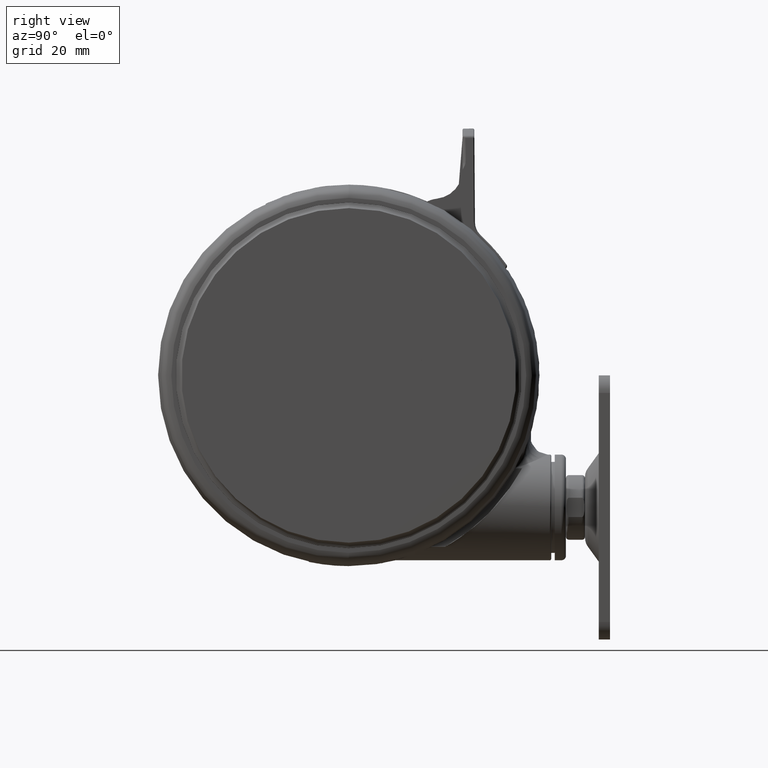
[diagram: clean part render]
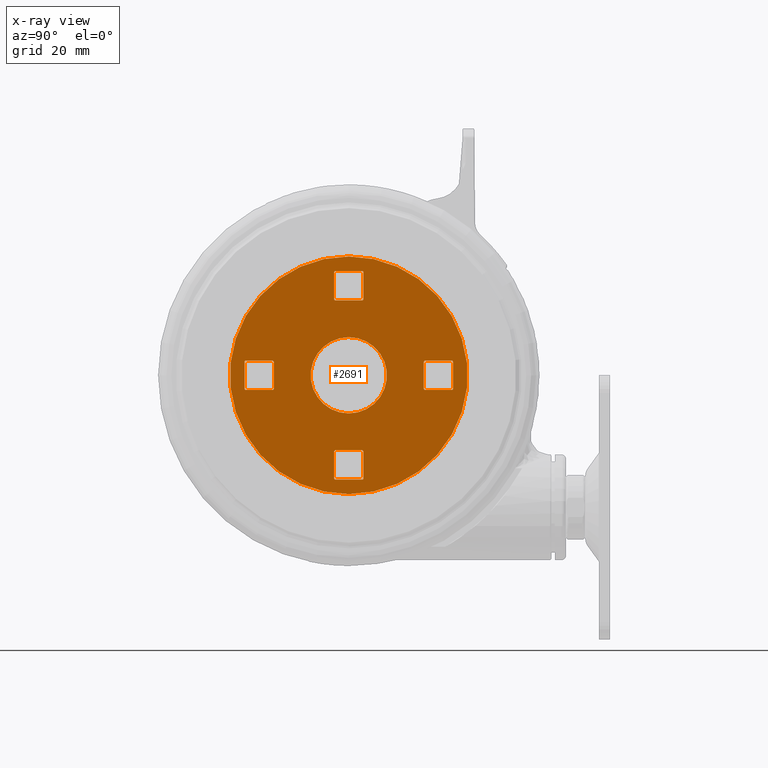
[diagram: x-ray — body ghosted, one internal face saturated and labeled with its STEP entity id]
A machine part, right view, then the same camera in x-ray: the body is ghosted and one INTERNAL B-rep face — a face not visible from any outside direction — is saturated and labeled: STEP entity #2691.
In plain terms, the highlighted planar face has unit normal (-1, 0, 0).
Its self-contained STEP definition (entity closure, byte-faithful):
#682 = AXIS2_PLACEMENT_3D ( 'NONE', #65509, #27276, #71905 ) ;
#771 = CARTESIAN_POINT ( 'NONE',  ( 35.05000000000002600, 5.000000000000342800, -3.800000000000094900 ) ) ;
#797 = DIRECTION ( 'NONE',  ( -1.000000000000000000, 0.0000000000000000000, 0.0000000000000000000 ) ) ;
#1112 = VECTOR ( 'NONE', #45716, 1000.000000000000000 ) ;
#1264 = CARTESIAN_POINT ( 'NONE',  ( 4.500000000000027500, -35.55000000000002600, -3.800000000000094900 ) ) ;
#1865 = VERTEX_POINT ( 'NONE', #79217 ) ;
#1954 = ORIENTED_EDGE ( 'NONE', *, *, #2468, .T. ) ;
#2390 = CARTESIAN_POINT ( 'NONE',  ( -25.54999999999997200, 4.499999999999877400, -3.800000000000094900 ) ) ;
#2468 = EDGE_CURVE ( 'NONE', #56537, #27357, #70090, .T. ) ;
#2691 = ADVANCED_FACE ( 'NONE', ( #9198, #58048, #74948, #41154, #24132, #7186 ), #57927, .F. ) ;
#2896 = AXIS2_PLACEMENT_3D ( 'NONE', #68899, #30649, #75239 ) ;
#3296 = VERTEX_POINT ( 'NONE', #52837 ) ;
#3450 = CARTESIAN_POINT ( 'NONE',  ( 25.55000000000002900, 4.500000000000241600, -3.800000000000094900 ) ) ;
#3480 = CIRCLE ( 'NONE', #18502, 40.50000000000000000 ) ;
#4076 = CARTESIAN_POINT ( 'NONE',  ( 26.05000000000002900, -4.499999999999752200, -3.800000000000094900 ) ) ;
#4117 = CARTESIAN_POINT ( 'NONE',  ( -26.04999999999997200, -5.000000000000127900, -3.800000000000094900 ) ) ;
#4129 = EDGE_LOOP ( 'NONE', ( #43655, #62179, #52966, #71344, #48735, #46915, #55117, #80193 ) ) ;
#4209 = DIRECTION ( 'NONE',  ( 0.0000000000000000000, 0.0000000000000000000, -1.000000000000000000 ) ) ;
#4718 = DIRECTION ( 'NONE',  ( -1.000000000000000000, 0.0000000000000000000, 0.0000000000000000000 ) ) ;
#5184 = LINE ( 'NONE', #33694, #69034 ) ;
#5614 = VERTEX_POINT ( 'NONE', #19569 ) ;
#6044 = CARTESIAN_POINT ( 'NONE',  ( 25.55000000000002900, -4.499999999999757500, -3.800000000000094900 ) ) ;
#6046 = CARTESIAN_POINT ( 'NONE',  ( -4.999999999999972500, 35.04999999999996900, -3.800000000000094900 ) ) ;
#6412 = AXIS2_PLACEMENT_3D ( 'NONE', #64480, #26285, #70910 ) ;
#6967 = EDGE_CURVE ( 'NONE', #56537, #57598, #44350, .T. ) ;
#7186 = FACE_BOUND ( 'NONE', #36274, .T. ) ;
#7812 = EDGE_LOOP ( 'NONE', ( #12315, #48839 ) ) ;
#8909 = VERTEX_POINT ( 'NONE', #62669 ) ;
#9198 = FACE_OUTER_BOUND ( 'NONE', #7812, .T. ) ;
#9398 = LINE ( 'NONE', #13366, #28294 ) ;
#9605 = CARTESIAN_POINT ( 'NONE',  ( 25.55000000000002900, -4.999999999999758400, -3.800000000000094900 ) ) ;
#9864 = EDGE_CURVE ( 'NONE', #36148, #58691, #13938, .T. ) ;
#10050 = EDGE_CURVE ( 'NONE', #52017, #3296, #80692, .T. ) ;
#10493 = DIRECTION ( 'NONE',  ( -1.000000000000000000, 0.0000000000000000000, 0.0000000000000000000 ) ) ;
#10608 = CARTESIAN_POINT ( 'NONE',  ( 35.05000000000002600, -4.999999999999657200, -3.800000000000094900 ) ) ;
#11124 = CIRCLE ( 'NONE', #13124, 0.5000000000000004400 ) ;
#11198 = ORIENTED_EDGE ( 'NONE', *, *, #48404, .T. ) ;
#11722 = CARTESIAN_POINT ( 'NONE',  ( 35.55000000000002600, -4.499999999999652700, -3.800000000000094900 ) ) ;
#12315 = ORIENTED_EDGE ( 'NONE', *, *, #73971, .T. ) ;
#12373 = CARTESIAN_POINT ( 'NONE',  ( 35.55000000000002600, 5.000000000000352600, -3.800000000000094900 ) ) ;
#12621 = EDGE_CURVE ( 'NONE', #62652, #27357, #24934, .T. ) ;
#12749 = DIRECTION ( 'NONE',  ( 0.0000000000000000000, 0.0000000000000000000, -1.000000000000000000 ) ) ;
#12928 = EDGE_CURVE ( 'NONE', #19203, #58263, #66788, .T. ) ;
#13066 = CARTESIAN_POINT ( 'NONE',  ( -4.999999999999972500, -35.05000000000002600, -3.800000000000094900 ) ) ;
#13124 = AXIS2_PLACEMENT_3D ( 'NONE', #51725, #13506, #58096 ) ;
#13214 = VERTEX_POINT ( 'NONE', #55687 ) ;
#13366 = CARTESIAN_POINT ( 'NONE',  ( -35.54999999999996900, 4.999999999999852600, -3.800000000000094900 ) ) ;
#13370 = DIRECTION ( 'NONE',  ( 0.0000000000000000000, 0.0000000000000000000, -1.000000000000000000 ) ) ;
#13506 = DIRECTION ( 'NONE',  ( 0.0000000000000000000, 0.0000000000000000000, -1.000000000000000000 ) ) ;
#13670 = ORIENTED_EDGE ( 'NONE', *, *, #42376, .T. ) ;
#13938 = LINE ( 'NONE', #20988, #77717 ) ;
#13969 = EDGE_CURVE ( 'NONE', #20529, #15328, #49689, .T. ) ;
#14466 = DIRECTION ( 'NONE',  ( 0.0000000000000000000, 0.0000000000000000000, -1.000000000000000000 ) ) ;
#15099 = ORIENTED_EDGE ( 'NONE', *, *, #10050, .T. ) ;
#15183 = LINE ( 'NONE', #81973, #17171 ) ;
#15328 = VERTEX_POINT ( 'NONE', #2390 ) ;
#15536 = AXIS2_PLACEMENT_3D ( 'NONE', #4076, #48720, #10493 ) ;
#15553 = CARTESIAN_POINT ( 'NONE',  ( 4.500000000000027500, -35.05000000000002600, -3.800000000000094900 ) ) ;
#15875 = VERTEX_POINT ( 'NONE', #34011 ) ;
#15907 = CARTESIAN_POINT ( 'NONE',  ( -4.999999999999972500, 25.54999999999997200, -3.800000000000094900 ) ) ;
#16452 = CIRCLE ( 'NONE', #29212, 0.5000000000000004400 ) ;
#16774 = CARTESIAN_POINT ( 'NONE',  ( -12.99999999999997200, -2.775557561562891400E-014, -3.800000000000094900 ) ) ;
#16938 = ORIENTED_EDGE ( 'NONE', *, *, #78203, .T. ) ;
#17171 = VECTOR ( 'NONE', #30963, 1000.000000000000000 ) ;
#17865 = LINE ( 'NONE', #81150, #79676 ) ;
#18010 = EDGE_CURVE ( 'NONE', #49959, #34839, #52005, .T. ) ;
#18502 = AXIS2_PLACEMENT_3D ( 'NONE', #60030, #21828, #66434 ) ;
#18613 = ORIENTED_EDGE ( 'NONE', *, *, #62146, .T. ) ;
#18683 = CARTESIAN_POINT ( 'NONE',  ( -4.499999999999971600, 25.54999999999997200, -3.800000000000094900 ) ) ;
#18693 = AXIS2_PLACEMENT_3D ( 'NONE', #26964, #71584, #33397 ) ;
#19203 = VERTEX_POINT ( 'NONE', #36545 ) ;
#19304 = ORIENTED_EDGE ( 'NONE', *, *, #27400, .T. ) ;
#19443 = AXIS2_PLACEMENT_3D ( 'NONE', #25832, #70482, #32228 ) ;
#19569 = CARTESIAN_POINT ( 'NONE',  ( 35.55000000000002600, 4.500000000000351700, -3.800000000000094900 ) ) ;
#19639 = ORIENTED_EDGE ( 'NONE', *, *, #59115, .T. ) ;
#19677 = AXIS2_PLACEMENT_3D ( 'NONE', #42449, #4209, #48861 ) ;
#19732 = CARTESIAN_POINT ( 'NONE',  ( 2.775557561562891400E-014, 53.99999999999997200, -3.800000000000094900 ) ) ;
#19821 = ORIENTED_EDGE ( 'NONE', *, *, #12928, .T. ) ;
#20301 = CARTESIAN_POINT ( 'NONE',  ( 4.500000000000027500, 35.04999999999996900, -3.800000000000094900 ) ) ;
#20529 = VERTEX_POINT ( 'NONE', #59203 ) ;
#20988 = CARTESIAN_POINT ( 'NONE',  ( 25.55000000000002900, 5.000000000000242500, -3.800000000000094900 ) ) ;
#21265 = ORIENTED_EDGE ( 'NONE', *, *, #46890, .F. ) ;
#21828 = DIRECTION ( 'NONE',  ( -0.0000000000000000000, -0.0000000000000000000, 1.000000000000000000 ) ) ;
#21973 = DIRECTION ( 'NONE',  ( -1.000000000000000000, 0.0000000000000000000, 0.0000000000000000000 ) ) ;
#22867 = CARTESIAN_POINT ( 'NONE',  ( 26.05000000000002900, -4.999999999999758400, -3.800000000000094900 ) ) ;
#22974 = ORIENTED_EDGE ( 'NONE', *, *, #74339, .F. ) ;
#23062 = CIRCLE ( 'NONE', #6412, 0.4999999999999995600 ) ;
#23316 = DIRECTION ( 'NONE',  ( -8.673617379884039200E-017, 1.000000000000000000, 0.0000000000000000000 ) ) ;
#23479 = VECTOR ( 'NONE', #72829, 1000.000000000000000 ) ;
#23792 = DIRECTION ( 'NONE',  ( -1.000000000000000000, 0.0000000000000000000, 0.0000000000000000000 ) ) ;
#23962 = ORIENTED_EDGE ( 'NONE', *, *, #37371, .T. ) ;
#24003 = EDGE_CURVE ( 'NONE', #39049, #43674, #11124, .T. ) ;
#24052 = DIRECTION ( 'NONE',  ( 1.000000000000000000, 0.0000000000000000000, 0.0000000000000000000 ) ) ;
#24132 = FACE_BOUND ( 'NONE', #54297, .T. ) ;
#24419 = ORIENTED_EDGE ( 'NONE', *, *, #33403, .F. ) ;
#24934 = LINE ( 'NONE', #79447, #56835 ) ;
#25039 = DIRECTION ( 'NONE',  ( 0.0000000000000000000, 0.0000000000000000000, -1.000000000000000000 ) ) ;
#25064 = VERTEX_POINT ( 'NONE', #71567 ) ;
#25310 = ORIENTED_EDGE ( 'NONE', *, *, #60809, .F. ) ;
#25367 = ORIENTED_EDGE ( 'NONE', *, *, #36391, .F. ) ;
#25694 = AXIS2_PLACEMENT_3D ( 'NONE', #52689, #14466, #59081 ) ;
#25802 = EDGE_CURVE ( 'NONE', #71623, #43674, #82109, .T. ) ;
#25832 = CARTESIAN_POINT ( 'NONE',  ( 2.775557561562891400E-014, -2.775557561562891400E-014, -3.800000000000094900 ) ) ;
#26285 = DIRECTION ( 'NONE',  ( 0.0000000000000000000, 0.0000000000000000000, -1.000000000000000000 ) ) ;
#26703 = DIRECTION ( 'NONE',  ( -1.000000000000000000, 0.0000000000000000000, 0.0000000000000000000 ) ) ;
#26733 = DIRECTION ( 'NONE',  ( 0.0000000000000000000, 1.000000000000000000, 0.0000000000000000000 ) ) ;
#26964 = CARTESIAN_POINT ( 'NONE',  ( -4.499999999999971600, 35.04999999999996900, -3.800000000000094900 ) ) ;
#27276 = DIRECTION ( 'NONE',  ( 0.0000000000000000000, 0.0000000000000000000, -1.000000000000000000 ) ) ;
#27357 = VERTEX_POINT ( 'NONE', #44454 ) ;
#27400 = EDGE_CURVE ( 'NONE', #42291, #57598, #23062, .T. ) ;
#27584 = CARTESIAN_POINT ( 'NONE',  ( 13.00000000000002700, -2.616353477673735300E-014, -3.800000000000094900 ) ) ;
#28294 = VECTOR ( 'NONE', #64377, 1000.000000000000000 ) ;
#28687 = DIRECTION ( 'NONE',  ( 1.000000000000000000, 0.0000000000000000000, 0.0000000000000000000 ) ) ;
#28901 = AXIS2_PLACEMENT_3D ( 'NONE', #15553, #60180, #21973 ) ;
#29212 = AXIS2_PLACEMENT_3D ( 'NONE', #74615, #36470, #81021 ) ;
#29343 = VECTOR ( 'NONE', #28687, 1000.000000000000000 ) ;
#29778 = VECTOR ( 'NONE', #69823, 1000.000000000000000 ) ;
#29843 = CARTESIAN_POINT ( 'NONE',  ( 5.000000000000027500, -26.05000000000002900, -3.800000000000094900 ) ) ;
#29922 = DIRECTION ( 'NONE',  ( -0.0000000000000000000, -0.0000000000000000000, 1.000000000000000000 ) ) ;
#30283 = CARTESIAN_POINT ( 'NONE',  ( -4.999999999999972500, -26.05000000000002900, -3.800000000000094900 ) ) ;
#30649 = DIRECTION ( 'NONE',  ( 0.0000000000000000000, 0.0000000000000000000, -1.000000000000000000 ) ) ;
#30895 = CIRCLE ( 'NONE', #75761, 0.4999999999999995600 ) ;
#30963 = DIRECTION ( 'NONE',  ( 0.0000000000000000000, -1.000000000000000000, 0.0000000000000000000 ) ) ;
#31274 = ORIENTED_EDGE ( 'NONE', *, *, #71120, .T. ) ;
#32059 = CIRCLE ( 'NONE', #2896, 0.5000000000000004400 ) ;
#32228 = DIRECTION ( 'NONE',  ( -1.000000000000000000, 0.0000000000000000000, 0.0000000000000000000 ) ) ;
#32667 = CIRCLE ( 'NONE', #28901, 0.4999999999999995600 ) ;
#33109 = AXIS2_PLACEMENT_3D ( 'NONE', #51605, #13370, #57972 ) ;
#33397 = DIRECTION ( 'NONE',  ( -1.000000000000000000, 0.0000000000000000000, 0.0000000000000000000 ) ) ;
#33403 = EDGE_CURVE ( 'NONE', #19203, #44228, #17865, .T. ) ;
#33694 = CARTESIAN_POINT ( 'NONE',  ( 35.55000000000002600, -4.999999999999657200, -3.800000000000094900 ) ) ;
#34011 = CARTESIAN_POINT ( 'NONE',  ( -40.49999999999997200, -2.775557561562891400E-014, -3.800000000000094900 ) ) ;
#34103 = ORIENTED_EDGE ( 'NONE', *, *, #66981, .F. ) ;
#34682 = VERTEX_POINT ( 'NONE', #16774 ) ;
#34774 = VECTOR ( 'NONE', #23792, 1000.000000000000000 ) ;
#34839 = VERTEX_POINT ( 'NONE', #56325 ) ;
#35755 = DIRECTION ( 'NONE',  ( 0.0000000000000000000, 0.0000000000000000000, -1.000000000000000000 ) ) ;
#35762 = CARTESIAN_POINT ( 'NONE',  ( -35.04999999999996900, -4.500000000000157200, -3.800000000000094900 ) ) ;
#35961 = CIRCLE ( 'NONE', #15536, 0.5000000000000004400 ) ;
#36148 = VERTEX_POINT ( 'NONE', #3450 ) ;
#36224 = CARTESIAN_POINT ( 'NONE',  ( 5.000000000000027500, 26.04999999999997200, -3.800000000000094900 ) ) ;
#36274 = EDGE_LOOP ( 'NONE', ( #23962, #11198 ) ) ;
#36391 = EDGE_CURVE ( 'NONE', #1865, #72064, #57411, .T. ) ;
#36470 = DIRECTION ( 'NONE',  ( 0.0000000000000000000, 0.0000000000000000000, -1.000000000000000000 ) ) ;
#36511 = DIRECTION ( 'NONE',  ( -1.000000000000000000, -3.491481338843135300E-015, 0.0000000000000000000 ) ) ;
#36545 = CARTESIAN_POINT ( 'NONE',  ( -4.499999999999971600, -35.55000000000002600, -3.800000000000094900 ) ) ;
#37371 = EDGE_CURVE ( 'NONE', #34682, #72895, #42350, .T. ) ;
#37398 = VERTEX_POINT ( 'NONE', #771 ) ;
#37401 = ORIENTED_EDGE ( 'NONE', *, *, #43802, .T. ) ;
#37736 = EDGE_CURVE ( 'NONE', #49111, #15875, #82085, .T. ) ;
#38660 = EDGE_CURVE ( 'NONE', #39049, #5614, #5184, .T. ) ;
#38991 = DIRECTION ( 'NONE',  ( 0.0000000000000000000, 0.0000000000000000000, -1.000000000000000000 ) ) ;
#39049 = VERTEX_POINT ( 'NONE', #11722 ) ;
#39215 = AXIS2_PLACEMENT_3D ( 'NONE', #19732, #38991, #797 ) ;
#39400 = CARTESIAN_POINT ( 'NONE',  ( -35.54999999999996900, 4.499999999999847200, -3.800000000000094900 ) ) ;
#40158 = DIRECTION ( 'NONE',  ( -1.047444401652940200E-014, 1.000000000000000000, 0.0000000000000000000 ) ) ;
#41154 = FACE_BOUND ( 'NONE', #59252, .T. ) ;
#41287 = ORIENTED_EDGE ( 'NONE', *, *, #12621, .F. ) ;
#42144 = AXIS2_PLACEMENT_3D ( 'NONE', #73898, #35755, #80308 ) ;
#42227 = DIRECTION ( 'NONE',  ( -1.000000000000000000, 0.0000000000000000000, 0.0000000000000000000 ) ) ;
#42291 = VERTEX_POINT ( 'NONE', #36224 ) ;
#42350 = CIRCLE ( 'NONE', #19443, 13.00000000000000000 ) ;
#42359 = EDGE_CURVE ( 'NONE', #49959, #71694, #30895, .T. ) ;
#42376 = EDGE_CURVE ( 'NONE', #62652, #34839, #62859, .T. ) ;
#42449 = CARTESIAN_POINT ( 'NONE',  ( 2.775557561562891400E-014, -2.775557561562891400E-014, -3.800000000000094900 ) ) ;
#42945 = DIRECTION ( 'NONE',  ( 0.0000000000000000000, 0.0000000000000000000, -1.000000000000000000 ) ) ;
#43018 = CARTESIAN_POINT ( 'NONE',  ( 40.50000000000002800, -2.276513990910344700E-014, -3.800000000000094900 ) ) ;
#43604 = DIRECTION ( 'NONE',  ( -1.000000000000000000, 0.0000000000000000000, 0.0000000000000000000 ) ) ;
#43655 = ORIENTED_EDGE ( 'NONE', *, *, #51819, .F. ) ;
#43674 = VERTEX_POINT ( 'NONE', #10608 ) ;
#43802 = EDGE_CURVE ( 'NONE', #25064, #44228, #32667, .T. ) ;
#44228 = VERTEX_POINT ( 'NONE', #1264 ) ;
#44350 = LINE ( 'NONE', #15907, #29343 ) ;
#44452 = ORIENTED_EDGE ( 'NONE', *, *, #53384, .F. ) ;
#44454 = CARTESIAN_POINT ( 'NONE',  ( -4.999999999999972500, 26.04999999999997200, -3.800000000000094900 ) ) ;
#45107 = AXIS2_PLACEMENT_3D ( 'NONE', #81047, #42945, #4718 ) ;
#45716 = DIRECTION ( 'NONE',  ( -1.000000000000000000, 0.0000000000000000000, 0.0000000000000000000 ) ) ;
#46840 = LINE ( 'NONE', #12373, #29778 ) ;
#46883 = AXIS2_PLACEMENT_3D ( 'NONE', #35762, #80319, #42227 ) ;
#46890 = EDGE_CURVE ( 'NONE', #20529, #3296, #49518, .T. ) ;
#46915 = ORIENTED_EDGE ( 'NONE', *, *, #50153, .T. ) ;
#47026 = LINE ( 'NONE', #77711, #61924 ) ;
#47210 = EDGE_LOOP ( 'NONE', ( #34103, #37401, #24419, #19821, #72605, #18613, #44452, #16938 ) ) ;
#47854 = CIRCLE ( 'NONE', #56948, 0.4999999999999995600 ) ;
#48318 = VECTOR ( 'NONE', #67016, 1000.000000000000000 ) ;
#48404 = EDGE_CURVE ( 'NONE', #72895, #34682, #73127, .T. ) ;
#48720 = DIRECTION ( 'NONE',  ( 0.0000000000000000000, 0.0000000000000000000, -1.000000000000000000 ) ) ;
#48735 = ORIENTED_EDGE ( 'NONE', *, *, #25802, .F. ) ;
#48839 = ORIENTED_EDGE ( 'NONE', *, *, #37736, .T. ) ;
#48861 = DIRECTION ( 'NONE',  ( -1.000000000000000000, 0.0000000000000000000, 0.0000000000000000000 ) ) ;
#49111 = VERTEX_POINT ( 'NONE', #43018 ) ;
#49312 = AXIS2_PLACEMENT_3D ( 'NONE', #58376, #12749, #43604 ) ;
#49388 = CARTESIAN_POINT ( 'NONE',  ( 4.500000000000027500, -25.55000000000002900, -3.800000000000094900 ) ) ;
#49518 = LINE ( 'NONE', #68312, #79360 ) ;
#49689 = CIRCLE ( 'NONE', #49312, 0.5000000000000004400 ) ;
#49737 = CARTESIAN_POINT ( 'NONE',  ( -25.54999999999997200, -5.000000000000118100, -3.800000000000094900 ) ) ;
#49959 = VERTEX_POINT ( 'NONE', #59025 ) ;
#50153 = EDGE_CURVE ( 'NONE', #71623, #58691, #35961, .T. ) ;
#50221 = CARTESIAN_POINT ( 'NONE',  ( 5.000000000000027500, 35.04999999999996900, -3.800000000000094900 ) ) ;
#51605 = CARTESIAN_POINT ( 'NONE',  ( -4.499999999999971600, -26.05000000000002900, -3.800000000000094900 ) ) ;
#51725 = CARTESIAN_POINT ( 'NONE',  ( 35.05000000000002600, -4.499999999999657200, -3.800000000000094900 ) ) ;
#51763 = LINE ( 'NONE', #61993, #34774 ) ;
#51819 = EDGE_CURVE ( 'NONE', #37398, #80937, #46840, .T. ) ;
#51849 = CARTESIAN_POINT ( 'NONE',  ( 5.000000000000027500, 35.54999999999996900, -3.800000000000094900 ) ) ;
#52005 = LINE ( 'NONE', #51849, #1112 ) ;
#52017 = VERTEX_POINT ( 'NONE', #39400 ) ;
#52689 = CARTESIAN_POINT ( 'NONE',  ( -4.499999999999971600, -35.05000000000002600, -3.800000000000094900 ) ) ;
#52837 = CARTESIAN_POINT ( 'NONE',  ( -35.04999999999996900, 4.999999999999852600, -3.800000000000094900 ) ) ;
#52966 = ORIENTED_EDGE ( 'NONE', *, *, #38660, .F. ) ;
#53346 = ORIENTED_EDGE ( 'NONE', *, *, #76208, .F. ) ;
#53384 = EDGE_CURVE ( 'NONE', #55120, #13214, #51763, .T. ) ;
#53653 = CARTESIAN_POINT ( 'NONE',  ( -35.54999999999996900, -5.000000000000158100, -3.800000000000094900 ) ) ;
#54297 = EDGE_LOOP ( 'NONE', ( #41287, #13670, #74311, #75482, #53346, #19304, #58500, #1954 ) ) ;
#55117 = ORIENTED_EDGE ( 'NONE', *, *, #9864, .F. ) ;
#55120 = VERTEX_POINT ( 'NONE', #49388 ) ;
#55687 = CARTESIAN_POINT ( 'NONE',  ( -4.499999999999971600, -25.55000000000002900, -3.800000000000094900 ) ) ;
#55954 = CIRCLE ( 'NONE', #33109, 0.4999999999999995600 ) ;
#56325 = CARTESIAN_POINT ( 'NONE',  ( -4.499999999999971600, 35.54999999999996900, -3.800000000000094900 ) ) ;
#56537 = VERTEX_POINT ( 'NONE', #18683 ) ;
#56784 = CIRCLE ( 'NONE', #46883, 0.5000000000000004400 ) ;
#56835 = VECTOR ( 'NONE', #60270, 1000.000000000000000 ) ;
#56948 = AXIS2_PLACEMENT_3D ( 'NONE', #63219, #25039, #69664 ) ;
#56968 = VERTEX_POINT ( 'NONE', #67963 ) ;
#57411 = LINE ( 'NONE', #53653, #23479 ) ;
#57598 = VERTEX_POINT ( 'NONE', #75836 ) ;
#57927 = PLANE ( 'NONE',  #39215 ) ;
#57972 = DIRECTION ( 'NONE',  ( -1.000000000000000000, 0.0000000000000000000, 0.0000000000000000000 ) ) ;
#58048 = FACE_BOUND ( 'NONE', #4129, .T. ) ;
#58096 = DIRECTION ( 'NONE',  ( -1.000000000000000000, 0.0000000000000000000, 0.0000000000000000000 ) ) ;
#58263 = VERTEX_POINT ( 'NONE', #13066 ) ;
#58376 = CARTESIAN_POINT ( 'NONE',  ( -26.04999999999997200, 4.499999999999881900, -3.800000000000094900 ) ) ;
#58500 = ORIENTED_EDGE ( 'NONE', *, *, #6967, .F. ) ;
#58691 = VERTEX_POINT ( 'NONE', #6044 ) ;
#59025 = CARTESIAN_POINT ( 'NONE',  ( 4.500000000000027500, 35.54999999999996900, -3.800000000000094900 ) ) ;
#59078 = ORIENTED_EDGE ( 'NONE', *, *, #13969, .T. ) ;
#59081 = DIRECTION ( 'NONE',  ( -1.000000000000000000, 0.0000000000000000000, 0.0000000000000000000 ) ) ;
#59115 = EDGE_CURVE ( 'NONE', #1865, #56968, #56784, .T. ) ;
#59203 = CARTESIAN_POINT ( 'NONE',  ( -26.04999999999997200, 4.999999999999881900, -3.800000000000094900 ) ) ;
#59252 = EDGE_LOOP ( 'NONE', ( #25367, #19639, #22974, #15099, #21265, #59078, #25310, #31274 ) ) ;
#59799 = EDGE_CURVE ( 'NONE', #36148, #80937, #16452, .T. ) ;
#60030 = CARTESIAN_POINT ( 'NONE',  ( 2.775557561562891400E-014, -2.775557561562891400E-014, -3.800000000000094900 ) ) ;
#60180 = DIRECTION ( 'NONE',  ( 0.0000000000000000000, 0.0000000000000000000, -1.000000000000000000 ) ) ;
#60270 = DIRECTION ( 'NONE',  ( 8.673617379884039200E-017, -1.000000000000000000, 0.0000000000000000000 ) ) ;
#60809 = EDGE_CURVE ( 'NONE', #8909, #15328, #80089, .T. ) ;
#61521 = CARTESIAN_POINT ( 'NONE',  ( 5.000000000000027500, -35.55000000000002600, -3.800000000000094900 ) ) ;
#61924 = VECTOR ( 'NONE', #26733, 1000.000000000000000 ) ;
#61993 = CARTESIAN_POINT ( 'NONE',  ( 5.000000000000027500, -25.55000000000002900, -3.800000000000094900 ) ) ;
#62146 = EDGE_CURVE ( 'NONE', #76550, #13214, #55954, .T. ) ;
#62179 = ORIENTED_EDGE ( 'NONE', *, *, #75703, .T. ) ;
#62652 = VERTEX_POINT ( 'NONE', #6046 ) ;
#62669 = CARTESIAN_POINT ( 'NONE',  ( -25.54999999999997200, -4.500000000000117200, -3.800000000000094900 ) ) ;
#62859 = CIRCLE ( 'NONE', #18693, 0.4999999999999995600 ) ;
#63163 = VECTOR ( 'NONE', #68924, 1000.000000000000000 ) ;
#63219 = CARTESIAN_POINT ( 'NONE',  ( 4.500000000000027500, -26.05000000000002900, -3.800000000000094900 ) ) ;
#64377 = DIRECTION ( 'NONE',  ( 3.491481338843135300E-015, -1.000000000000000000, 0.0000000000000000000 ) ) ;
#64480 = CARTESIAN_POINT ( 'NONE',  ( 4.500000000000027500, 26.04999999999997200, -3.800000000000094900 ) ) ;
#64903 = DIRECTION ( 'NONE',  ( 0.0000000000000000000, 0.0000000000000000000, -1.000000000000000000 ) ) ;
#65098 = VECTOR ( 'NONE', #23316, 1000.000000000000000 ) ;
#65509 = CARTESIAN_POINT ( 'NONE',  ( -26.04999999999997200, -4.500000000000127000, -3.800000000000094900 ) ) ;
#66434 = DIRECTION ( 'NONE',  ( -1.000000000000000000, 0.0000000000000000000, 0.0000000000000000000 ) ) ;
#66788 = CIRCLE ( 'NONE', #25694, 0.4999999999999995600 ) ;
#66981 = EDGE_CURVE ( 'NONE', #25064, #70798, #82019, .T. ) ;
#67016 = DIRECTION ( 'NONE',  ( 1.000000000000000000, 1.047444401652940200E-014, 0.0000000000000000000 ) ) ;
#67461 = CIRCLE ( 'NONE', #682, 0.5000000000000004400 ) ;
#67963 = CARTESIAN_POINT ( 'NONE',  ( -35.54999999999996900, -4.500000000000157200, -3.800000000000094900 ) ) ;
#68173 = CARTESIAN_POINT ( 'NONE',  ( 2.775557561562891400E-014, -2.775557561562891400E-014, -3.800000000000094900 ) ) ;
#68312 = CARTESIAN_POINT ( 'NONE',  ( -25.54999999999997200, 4.999999999999881900, -3.800000000000094900 ) ) ;
#68899 = CARTESIAN_POINT ( 'NONE',  ( 35.05000000000002600, 4.500000000000341900, -3.800000000000094900 ) ) ;
#68924 = DIRECTION ( 'NONE',  ( -3.491481338843135300E-015, 1.000000000000000000, 0.0000000000000000000 ) ) ;
#69034 = VECTOR ( 'NONE', #40158, 1000.000000000000000 ) ;
#69664 = DIRECTION ( 'NONE',  ( -1.000000000000000000, 0.0000000000000000000, 0.0000000000000000000 ) ) ;
#69823 = DIRECTION ( 'NONE',  ( -1.000000000000000000, -1.056118019032824000E-014, 0.0000000000000000000 ) ) ;
#70090 = CIRCLE ( 'NONE', #45107, 0.4999999999999995600 ) ;
#70482 = DIRECTION ( 'NONE',  ( 0.0000000000000000000, 0.0000000000000000000, -1.000000000000000000 ) ) ;
#70798 = VERTEX_POINT ( 'NONE', #29843 ) ;
#70910 = DIRECTION ( 'NONE',  ( -1.000000000000000000, 0.0000000000000000000, 0.0000000000000000000 ) ) ;
#71120 = EDGE_CURVE ( 'NONE', #8909, #72064, #67461, .T. ) ;
#71344 = ORIENTED_EDGE ( 'NONE', *, *, #24003, .T. ) ;
#71567 = CARTESIAN_POINT ( 'NONE',  ( 5.000000000000027500, -35.05000000000002600, -3.800000000000094900 ) ) ;
#71584 = DIRECTION ( 'NONE',  ( 0.0000000000000000000, 0.0000000000000000000, -1.000000000000000000 ) ) ;
#71623 = VERTEX_POINT ( 'NONE', #22867 ) ;
#71694 = VERTEX_POINT ( 'NONE', #50221 ) ;
#71723 = DIRECTION ( 'NONE',  ( 1.047444401652940200E-014, -1.000000000000000000, 0.0000000000000000000 ) ) ;
#71905 = DIRECTION ( 'NONE',  ( -1.000000000000000000, 0.0000000000000000000, 0.0000000000000000000 ) ) ;
#72064 = VERTEX_POINT ( 'NONE', #4117 ) ;
#72605 = ORIENTED_EDGE ( 'NONE', *, *, #82591, .F. ) ;
#72829 = DIRECTION ( 'NONE',  ( 1.000000000000000000, 3.578217512641975300E-015, 0.0000000000000000000 ) ) ;
#72895 = VERTEX_POINT ( 'NONE', #27584 ) ;
#73095 = CARTESIAN_POINT ( 'NONE',  ( 26.05000000000002900, 5.000000000000252200, -3.800000000000094900 ) ) ;
#73127 = CIRCLE ( 'NONE', #19677, 13.00000000000000000 ) ;
#73362 = AXIS2_PLACEMENT_3D ( 'NONE', #68173, #29922, #74513 ) ;
#73898 = CARTESIAN_POINT ( 'NONE',  ( -35.04999999999996900, 4.499999999999852600, -3.800000000000094900 ) ) ;
#73971 = EDGE_CURVE ( 'NONE', #15875, #49111, #3480, .T. ) ;
#74311 = ORIENTED_EDGE ( 'NONE', *, *, #18010, .F. ) ;
#74339 = EDGE_CURVE ( 'NONE', #52017, #56968, #9398, .T. ) ;
#74513 = DIRECTION ( 'NONE',  ( -1.000000000000000000, 0.0000000000000000000, 0.0000000000000000000 ) ) ;
#74615 = CARTESIAN_POINT ( 'NONE',  ( 26.05000000000002900, 4.500000000000252200, -3.800000000000094900 ) ) ;
#74948 = FACE_BOUND ( 'NONE', #47210, .T. ) ;
#75239 = DIRECTION ( 'NONE',  ( -1.000000000000000000, 0.0000000000000000000, 0.0000000000000000000 ) ) ;
#75482 = ORIENTED_EDGE ( 'NONE', *, *, #42359, .T. ) ;
#75703 = EDGE_CURVE ( 'NONE', #37398, #5614, #32059, .T. ) ;
#75761 = AXIS2_PLACEMENT_3D ( 'NONE', #20301, #64903, #26703 ) ;
#75836 = CARTESIAN_POINT ( 'NONE',  ( 4.500000000000027500, 25.54999999999997200, -3.800000000000094900 ) ) ;
#76208 = EDGE_CURVE ( 'NONE', #42291, #71694, #47026, .T. ) ;
#76550 = VERTEX_POINT ( 'NONE', #30283 ) ;
#77711 = CARTESIAN_POINT ( 'NONE',  ( 5.000000000000027500, 25.54999999999997200, -3.800000000000094900 ) ) ;
#77717 = VECTOR ( 'NONE', #71723, 1000.000000000000000 ) ;
#78203 = EDGE_CURVE ( 'NONE', #55120, #70798, #47854, .T. ) ;
#79217 = CARTESIAN_POINT ( 'NONE',  ( -35.04999999999996900, -5.000000000000158100, -3.800000000000094900 ) ) ;
#79360 = VECTOR ( 'NONE', #36511, 1000.000000000000000 ) ;
#79447 = CARTESIAN_POINT ( 'NONE',  ( -4.999999999999972500, 35.54999999999996900, -3.800000000000094900 ) ) ;
#79676 = VECTOR ( 'NONE', #24052, 1000.000000000000000 ) ;
#80089 = LINE ( 'NONE', #49737, #63163 ) ;
#80193 = ORIENTED_EDGE ( 'NONE', *, *, #59799, .T. ) ;
#80308 = DIRECTION ( 'NONE',  ( -1.000000000000000000, 0.0000000000000000000, 0.0000000000000000000 ) ) ;
#80319 = DIRECTION ( 'NONE',  ( 0.0000000000000000000, 0.0000000000000000000, -1.000000000000000000 ) ) ;
#80692 = CIRCLE ( 'NONE', #42144, 0.5000000000000004400 ) ;
#80937 = VERTEX_POINT ( 'NONE', #73095 ) ;
#81021 = DIRECTION ( 'NONE',  ( -1.000000000000000000, 0.0000000000000000000, 0.0000000000000000000 ) ) ;
#81047 = CARTESIAN_POINT ( 'NONE',  ( -4.499999999999971600, 26.04999999999997200, -3.800000000000094900 ) ) ;
#81150 = CARTESIAN_POINT ( 'NONE',  ( -4.999999999999972500, -35.55000000000002600, -3.800000000000094900 ) ) ;
#81973 = CARTESIAN_POINT ( 'NONE',  ( -4.999999999999972500, -25.55000000000002900, -3.800000000000094900 ) ) ;
#82019 = LINE ( 'NONE', #61521, #65098 ) ;
#82085 = CIRCLE ( 'NONE', #73362, 40.50000000000000000 ) ;
#82109 = LINE ( 'NONE', #9605, #48318 ) ;
#82591 = EDGE_CURVE ( 'NONE', #76550, #58263, #15183, .T. ) ;